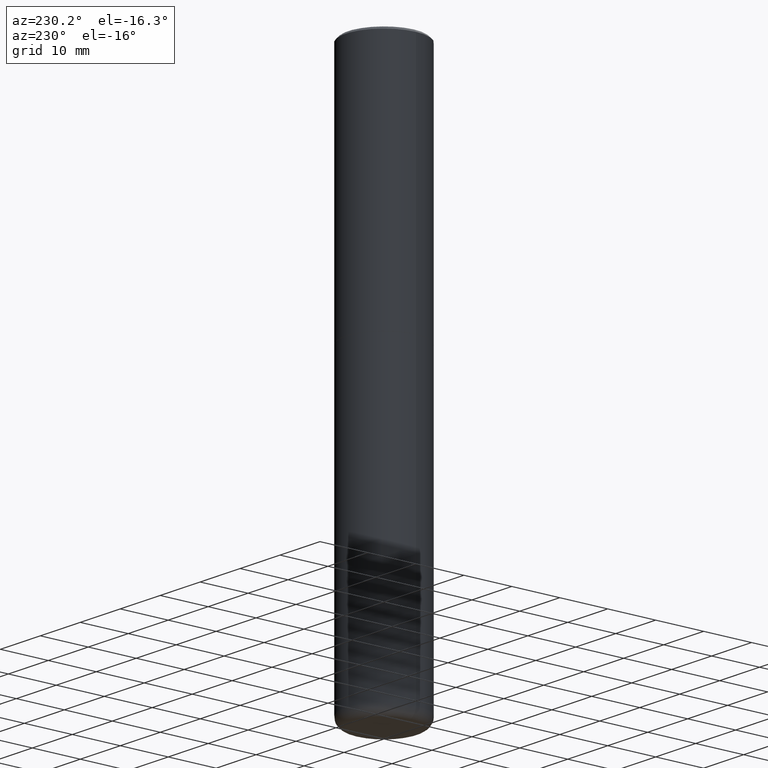
[diagram: clean part render]
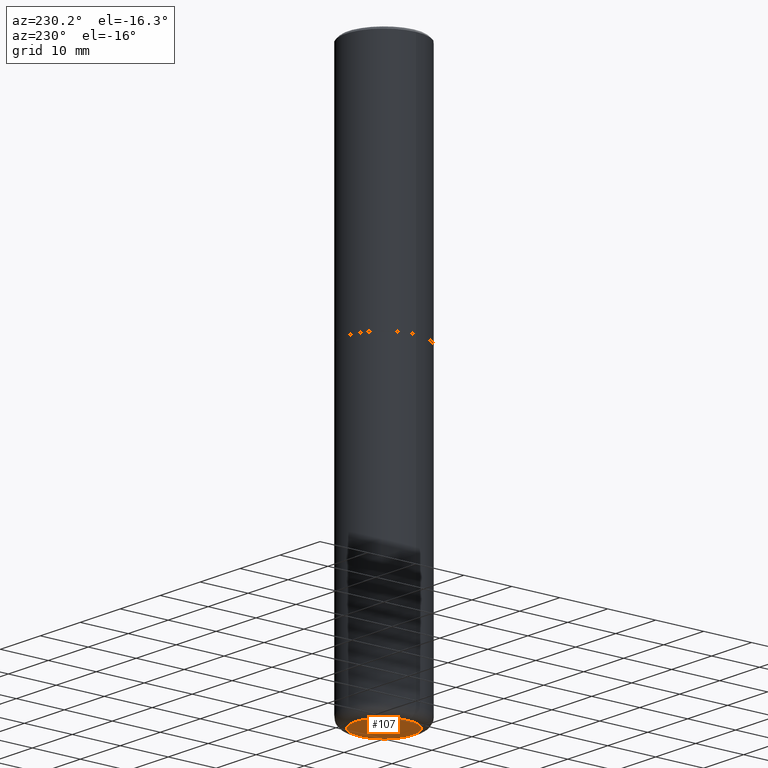
[diagram: same view with one face highlighted and labeled with its STEP entity id]
A machine part, auxiliary view. The second image highlights one B-rep face of the part: STEP entity #107.
In plain terms, the highlighted planar face has unit normal (0, -0, -1).
Its self-contained STEP definition (entity closure, byte-faithful):
#15 = EDGE_CURVE ( 'NONE', #345, #276, #158, .T. ) ;
#42 = CARTESIAN_POINT ( 'NONE',  ( 1.838387388321359722E-28, -5.337161088697062833E-15, -4.527599999999998737 ) ) ;
#55 = ORIENTED_EDGE ( 'NONE', *, *, #71, .F. ) ;
#58 = ORIENTED_EDGE ( 'NONE', *, *, #15, .F. ) ;
#66 = AXIS2_PLACEMENT_3D ( 'NONE', #42, #265, #75 ) ;
#71 = EDGE_CURVE ( 'NONE', #276, #345, #310, .T. ) ;
#75 = DIRECTION ( 'NONE',  ( -1.000000000000000000, 6.982962677686265922E-15, -4.876176775795935793E-29 ) ) ;
#107 = ADVANCED_FACE ( 'NONE', ( #333 ), #141, .T. ) ;
#134 = DIRECTION ( 'NONE',  ( 1.000000000000000000, -6.982962677686269077E-15, 0.000000000000000000 ) ) ;
#141 = PLANE ( 'NONE',  #66 ) ;
#158 = CIRCLE ( 'NONE', #300, 0.2362500000000000433 ) ;
#194 = DIRECTION ( 'NONE',  ( -2.445468806185136597E-29, 3.491481338843145583E-15, 1.000000000000000000 ) ) ;
#195 = AXIS2_PLACEMENT_3D ( 'NONE', #387, #357, #289 ) ;
#215 = CARTESIAN_POINT ( 'NONE',  ( -0.2362500000000000433, -1.371238533930791379E-14, -4.527599999999998737 ) ) ;
#265 = DIRECTION ( 'NONE',  ( 2.438088387897960049E-29, -3.491481338843145188E-15, -1.000000000000000000 ) ) ;
#270 = CARTESIAN_POINT ( 'NONE',  ( 0.2362500000000000433, -1.745775584234960235E-14, -4.527599999999998737 ) ) ;
#276 = VERTEX_POINT ( 'NONE', #270 ) ;
#289 = DIRECTION ( 'NONE',  ( 1.000000000000000000, -6.982962677686269077E-15, 0.000000000000000000 ) ) ;
#300 = AXIS2_PLACEMENT_3D ( 'NONE', #353, #194, #134 ) ;
#310 = CIRCLE ( 'NONE', #195, 0.2362500000000000433 ) ;
#333 = FACE_OUTER_BOUND ( 'NONE', #342, .T. ) ;
#342 = EDGE_LOOP ( 'NONE', ( #55, #58 ) ) ;
#345 = VERTEX_POINT ( 'NONE', #215 ) ;
#353 = CARTESIAN_POINT ( 'NONE',  ( 1.107210456688382074E-28, -1.580803090974622074E-14, -4.527599999999998737 ) ) ;
#357 = DIRECTION ( 'NONE',  ( -2.445468806185136597E-29, 3.491481338843145583E-15, 1.000000000000000000 ) ) ;
#387 = CARTESIAN_POINT ( 'NONE',  ( 1.107210456688382074E-28, -1.580803090974622074E-14, -4.527599999999998737 ) ) ;